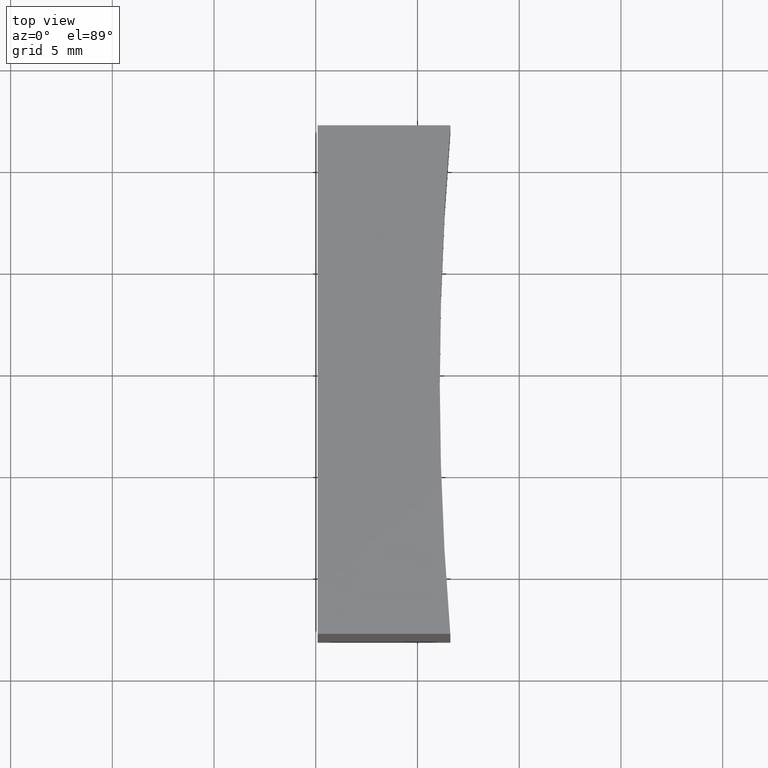
[diagram: clean part render]
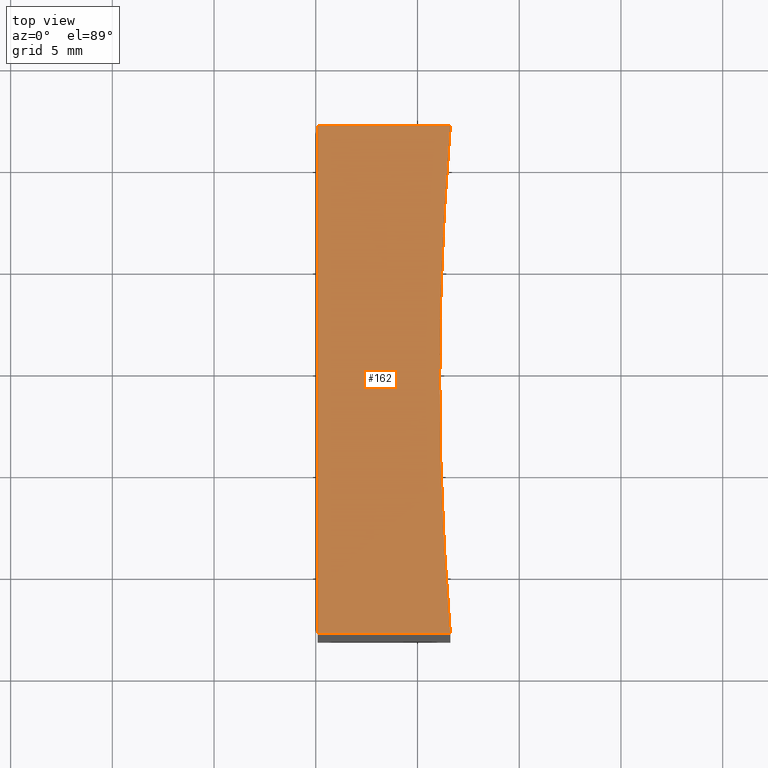
[diagram: same view with one face highlighted and labeled with its STEP entity id]
A machine part, top view. The second image highlights one B-rep face of the part: STEP entity #162.
In plain terms, the highlighted planar face has unit normal (0, 0, 1).
Its self-contained STEP definition (entity closure, byte-faithful):
#4 = AXIS2_PLACEMENT_3D ( 'NONE', #73, #71, #13 ) ;
#8 = LINE ( 'NONE', #144, #136 ) ;
#11 = VECTOR ( 'NONE', #169, 1000.000000000000000 ) ;
#13 = DIRECTION ( 'NONE',  ( 1.000000000000000000, 0.0000000000000000000, 0.0000000000000000000 ) ) ;
#21 = DIRECTION ( 'NONE',  ( 1.000000000000000000, 1.063963437378483000E-014, 0.0000000000000000000 ) ) ;
#24 = CARTESIAN_POINT ( 'NONE',  ( 115.0926555349195200, 69.37802112337243400, 25.00000000000000000 ) ) ;
#25 = CARTESIAN_POINT ( 'NONE',  ( 121.6143964708712700, 56.87802112337257700, 25.00000000000000000 ) ) ;
#27 = CIRCLE ( 'NONE', #4, 149.9999999999999700 ) ;
#29 = PLANE ( 'NONE',  #61 ) ;
#44 = EDGE_CURVE ( 'NONE', #123, #57, #158, .T. ) ;
#46 = DIRECTION ( 'NONE',  ( 0.0000000000000000000, 0.0000000000000000000, 1.000000000000000000 ) ) ;
#57 = VERTEX_POINT ( 'NONE', #25 ) ;
#59 = EDGE_CURVE ( 'NONE', #94, #175, #8, .T. ) ;
#61 = AXIS2_PLACEMENT_3D ( 'NONE', #84, #46, #196 ) ;
#66 = DIRECTION ( 'NONE',  ( 1.000000000000000000, 0.0000000000000000000, 0.0000000000000000000 ) ) ;
#69 = ORIENTED_EDGE ( 'NONE', *, *, #44, .T. ) ;
#71 = DIRECTION ( 'NONE',  ( -0.0000000000000000000, -0.0000000000000000000, -1.000000000000000000 ) ) ;
#72 = EDGE_CURVE ( 'NONE', #57, #230, #180, .T. ) ;
#73 = CARTESIAN_POINT ( 'NONE',  ( 271.0926557596387700, 69.37802112337249100, 25.00000000000000000 ) ) ;
#74 = EDGE_LOOP ( 'NONE', ( #209, #69, #193, #137, #91 ) ) ;
#84 = CARTESIAN_POINT ( 'NONE',  ( 271.0926557596387700, 69.37802112337249100, 25.00000000000000000 ) ) ;
#91 = ORIENTED_EDGE ( 'NONE', *, *, #59, .T. ) ;
#94 = VERTEX_POINT ( 'NONE', #208 ) ;
#95 = EDGE_CURVE ( 'NONE', #175, #123, #202, .T. ) ;
#111 = AXIS2_PLACEMENT_3D ( 'NONE', #127, #189, #66 ) ;
#123 = VERTEX_POINT ( 'NONE', #224 ) ;
#125 = DIRECTION ( 'NONE',  ( -1.000000000000000000, -4.255853749513932300E-015, -0.0000000000000000000 ) ) ;
#127 = CARTESIAN_POINT ( 'NONE',  ( 271.0926557596387700, 69.37802112337249100, 25.00000000000000000 ) ) ;
#136 = VECTOR ( 'NONE', #125, 1000.000000000000000 ) ;
#137 = ORIENTED_EDGE ( 'NONE', *, *, #210, .T. ) ;
#143 = CARTESIAN_POINT ( 'NONE',  ( 115.0926555349195200, 56.87802112337244200, 25.00000000000000000 ) ) ;
#144 = CARTESIAN_POINT ( 'NONE',  ( 115.0926555349195200, 81.87802112337243400, 25.00000000000000000 ) ) ;
#158 = LINE ( 'NONE', #143, #229 ) ;
#162 = ADVANCED_FACE ( 'NONE', ( #219 ), #29, .T. ) ;
#169 = DIRECTION ( 'NONE',  ( 0.0000000000000000000, -1.000000000000000000, 0.0000000000000000000 ) ) ;
#175 = VERTEX_POINT ( 'NONE', #223 ) ;
#177 = CARTESIAN_POINT ( 'NONE',  ( 121.0926557596387600, 69.37802112337249100, 25.00000000000000000 ) ) ;
#180 = CIRCLE ( 'NONE', #111, 149.9999999999999700 ) ;
#189 = DIRECTION ( 'NONE',  ( -0.0000000000000000000, -0.0000000000000000000, -1.000000000000000000 ) ) ;
#193 = ORIENTED_EDGE ( 'NONE', *, *, #72, .T. ) ;
#196 = DIRECTION ( 'NONE',  ( 1.000000000000000000, 0.0000000000000000000, -0.0000000000000000000 ) ) ;
#202 = LINE ( 'NONE', #24, #11 ) ;
#208 = CARTESIAN_POINT ( 'NONE',  ( 121.6143964708713000, 81.87802112337246300, 25.00000000000000000 ) ) ;
#209 = ORIENTED_EDGE ( 'NONE', *, *, #95, .T. ) ;
#210 = EDGE_CURVE ( 'NONE', #230, #94, #27, .T. ) ;
#219 = FACE_OUTER_BOUND ( 'NONE', #74, .T. ) ;
#223 = CARTESIAN_POINT ( 'NONE',  ( 115.0926555349195200, 81.87802112337243400, 25.00000000000000000 ) ) ;
#224 = CARTESIAN_POINT ( 'NONE',  ( 115.0926555349195200, 56.87802112337244200, 25.00000000000000000 ) ) ;
#229 = VECTOR ( 'NONE', #21, 1000.000000000000000 ) ;
#230 = VERTEX_POINT ( 'NONE', #177 ) ;